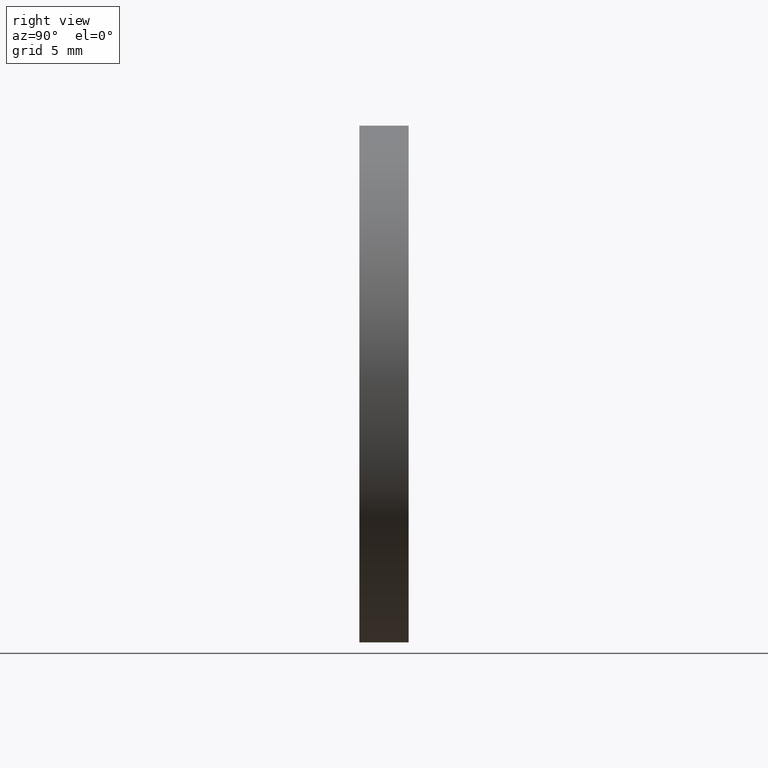
[diagram: clean part render]
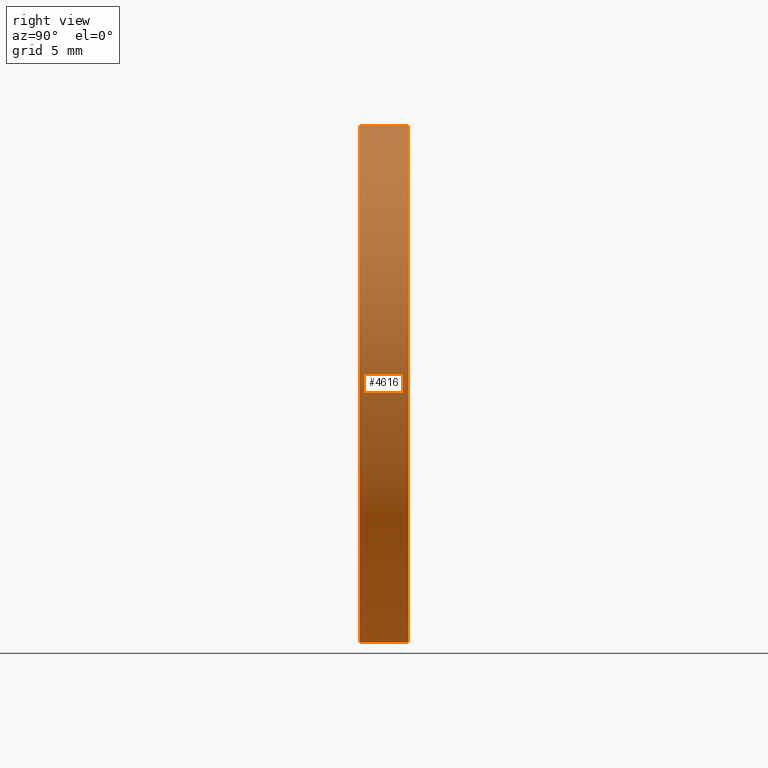
[diagram: same view with one face highlighted and labeled with its STEP entity id]
A machine part, right view. The second image highlights one B-rep face of the part: STEP entity #4616.
In plain terms, the highlighted cylindrical surface (partial cylindrical patch) has radius 21 mm, axis along (-0, -1, -0).
Its self-contained STEP definition (entity closure, byte-faithful):
#374 = ORIENTED_EDGE ( 'NONE', *, *, #9925, .T. ) ;
#645 = CYLINDRICAL_SURFACE ( 'NONE', #11468, 21.00000000000000000 ) ;
#869 = DIRECTION ( 'NONE',  ( 0.000000000000000000, 0.000000000000000000, 1.000000000000000000 ) ) ;
#914 = CARTESIAN_POINT ( 'NONE',  ( 0.000000000000000000, 2.000000000000000000, -21.00000000000000000 ) ) ;
#1225 = ORIENTED_EDGE ( 'NONE', *, *, #1434, .F. ) ;
#1434 = EDGE_CURVE ( 'NONE', #10530, #9103, #8189, .T. ) ;
#1982 = CARTESIAN_POINT ( 'NONE',  ( 0.000000000000000000, 2.000000000000000000, 0.000000000000000000 ) ) ;
#2183 = CARTESIAN_POINT ( 'NONE',  ( 0.000000000000000000, -2.000000000000000000, 0.000000000000000000 ) ) ;
#3388 = LINE ( 'NONE', #9151, #4527 ) ;
#3899 = VERTEX_POINT ( 'NONE', #6438 ) ;
#3961 = CIRCLE ( 'NONE', #10950, 21.00000000000000000 ) ;
#4498 = DIRECTION ( 'NONE',  ( 0.000000000000000000, 1.000000000000000000, 0.000000000000000000 ) ) ;
#4527 = VECTOR ( 'NONE', #11015, 1000.000000000000000 ) ;
#4616 = ADVANCED_FACE ( 'NONE', ( #5156 ), #645, .T. ) ;
#4954 = ORIENTED_EDGE ( 'NONE', *, *, #10977, .T. ) ;
#5156 = FACE_OUTER_BOUND ( 'NONE', #7466, .T. ) ;
#5171 = VERTEX_POINT ( 'NONE', #9290 ) ;
#5652 = DIRECTION ( 'NONE',  ( -0.000000000000000000, -1.000000000000000000, -0.000000000000000000 ) ) ;
#6438 = CARTESIAN_POINT ( 'NONE',  ( 2.571758278209441661E-15, -2.000000000000000000, 21.00000000000000000 ) ) ;
#6934 = LINE ( 'NONE', #8965, #10329 ) ;
#7448 = DIRECTION ( 'NONE',  ( 0.000000000000000000, 0.000000000000000000, -1.000000000000000000 ) ) ;
#7466 = EDGE_LOOP ( 'NONE', ( #1225, #4954, #374, #8503 ) ) ;
#7485 = DIRECTION ( 'NONE',  ( -0.000000000000000000, -1.000000000000000000, -0.000000000000000000 ) ) ;
#7605 = AXIS2_PLACEMENT_3D ( 'NONE', #1982, #4498, #869 ) ;
#8189 = CIRCLE ( 'NONE', #7605, 21.00000000000000000 ) ;
#8337 = CARTESIAN_POINT ( 'NONE',  ( 2.571758278209441661E-15, 2.000000000000000000, 21.00000000000000000 ) ) ;
#8503 = ORIENTED_EDGE ( 'NONE', *, *, #8945, .F. ) ;
#8580 = DIRECTION ( 'NONE',  ( 0.000000000000000000, 1.000000000000000000, 0.000000000000000000 ) ) ;
#8945 = EDGE_CURVE ( 'NONE', #9103, #5171, #6934, .T. ) ;
#8965 = CARTESIAN_POINT ( 'NONE',  ( 0.000000000000000000, 2.000000000000000000, -21.00000000000000000 ) ) ;
#9103 = VERTEX_POINT ( 'NONE', #914 ) ;
#9151 = CARTESIAN_POINT ( 'NONE',  ( 2.571758278209441661E-15, 2.000000000000000000, 21.00000000000000000 ) ) ;
#9290 = CARTESIAN_POINT ( 'NONE',  ( 0.000000000000000000, -2.000000000000000000, -21.00000000000000000 ) ) ;
#9925 = EDGE_CURVE ( 'NONE', #3899, #5171, #3961, .T. ) ;
#10184 = CARTESIAN_POINT ( 'NONE',  ( 0.000000000000000000, 2.000000000000000000, 0.000000000000000000 ) ) ;
#10329 = VECTOR ( 'NONE', #5652, 1000.000000000000000 ) ;
#10353 = DIRECTION ( 'NONE',  ( 0.000000000000000000, 0.000000000000000000, 1.000000000000000000 ) ) ;
#10530 = VERTEX_POINT ( 'NONE', #8337 ) ;
#10950 = AXIS2_PLACEMENT_3D ( 'NONE', #2183, #8580, #10353 ) ;
#10977 = EDGE_CURVE ( 'NONE', #10530, #3899, #3388, .T. ) ;
#11015 = DIRECTION ( 'NONE',  ( -0.000000000000000000, -1.000000000000000000, -0.000000000000000000 ) ) ;
#11468 = AXIS2_PLACEMENT_3D ( 'NONE', #10184, #7485, #7448 ) ;